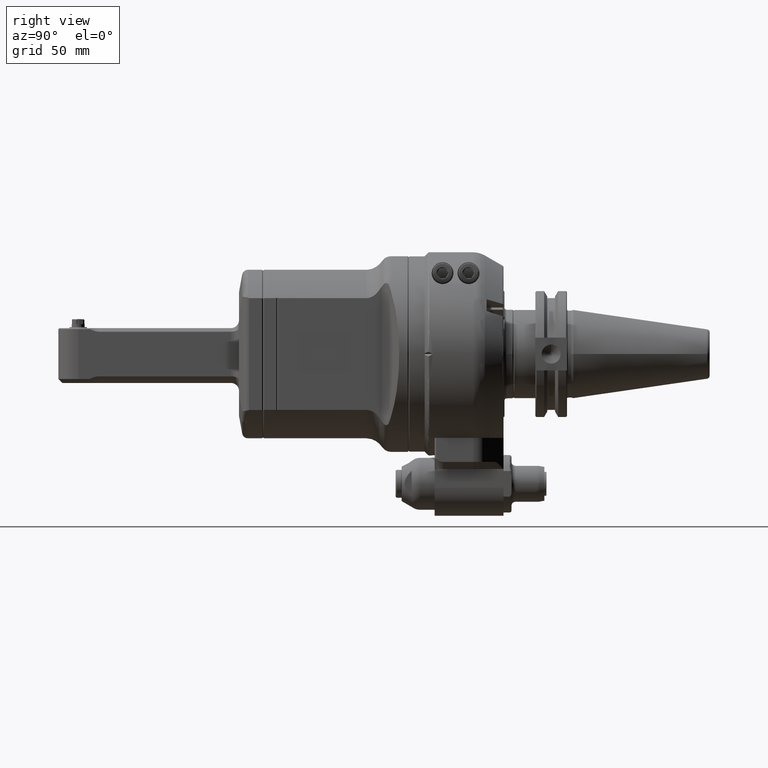
[diagram: clean part render]
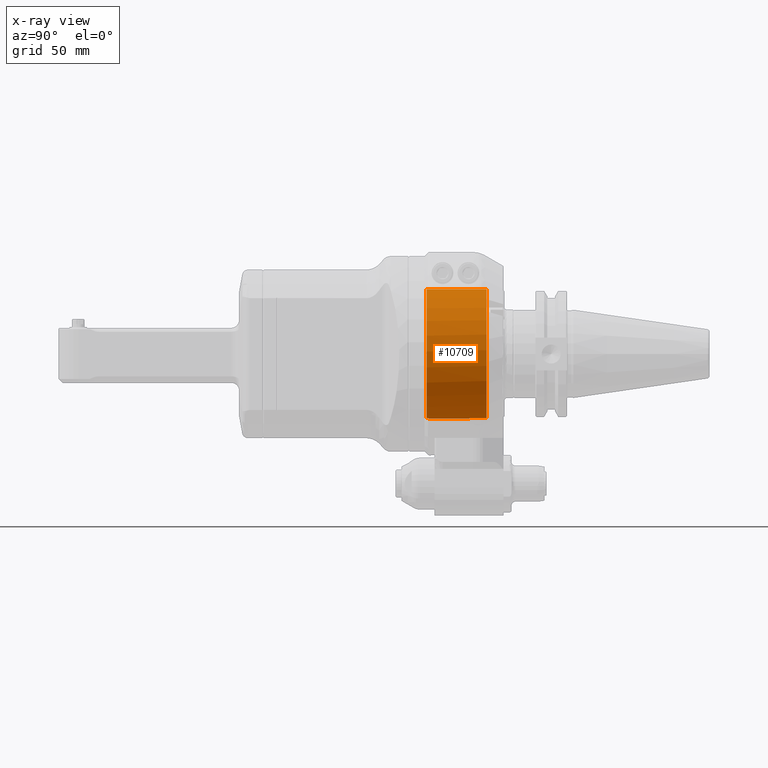
[diagram: x-ray — body ghosted, one internal face saturated and labeled with its STEP entity id]
A machine part, right view, then the same camera in x-ray: the body is ghosted and one INTERNAL B-rep face — a face not visible from any outside direction — is saturated and labeled: STEP entity #10709.
In plain terms, the highlighted cylindrical surface (partial cylindrical patch) has radius 32.5 mm, axis along (0, -1, 0).
Its self-contained STEP definition (entity closure, byte-faithful):
#945=LINE('',#19537,#1677);
#946=LINE('',#19540,#1678);
#947=LINE('',#19544,#1679);
#948=LINE('',#19548,#1680);
#1677=VECTOR('',#14128,0.334645669291339);
#1678=VECTOR('',#14131,0.334645669291339);
#1679=VECTOR('',#14134,1.18110236220472);
#1680=VECTOR('',#14137,1.18110236220394);
#2110=CYLINDRICAL_SURFACE('',#11807,1.27952755905512);
#2510=FACE_OUTER_BOUND('',#3193,.T.);
#3193=EDGE_LOOP('',(#8394,#8395,#8396,#8397,#8398,#8399,#8400,#8401));
#3861=CIRCLE('',#11758,1.27952755905512);
#3883=CIRCLE('',#11808,1.27952755905512);
#3884=CIRCLE('',#11809,1.27952755905512);
#3885=CIRCLE('',#11810,1.27952755905512);
#4679=VERTEX_POINT('',#18711);
#4680=VERTEX_POINT('',#18713);
#4718=VERTEX_POINT('',#19535);
#4719=VERTEX_POINT('',#19539);
#4720=VERTEX_POINT('',#19541);
#4721=VERTEX_POINT('',#19543);
#4722=VERTEX_POINT('',#19545);
#4723=VERTEX_POINT('',#19547);
#5963=EDGE_CURVE('',#4680,#4679,#3861,.T.);
#6033=EDGE_CURVE('',#4679,#4718,#945,.T.);
#6034=EDGE_CURVE('',#4680,#4719,#946,.T.);
#6035=EDGE_CURVE('',#4720,#4718,#3883,.T.);
#6036=EDGE_CURVE('',#4720,#4721,#947,.T.);
#6037=EDGE_CURVE('',#4722,#4721,#3884,.T.);
#6038=EDGE_CURVE('',#4722,#4723,#948,.T.);
#6039=EDGE_CURVE('',#4719,#4723,#3885,.T.);
#8394=ORIENTED_EDGE('',*,*,#6034,.F.);
#8395=ORIENTED_EDGE('',*,*,#5963,.T.);
#8396=ORIENTED_EDGE('',*,*,#6033,.T.);
#8397=ORIENTED_EDGE('',*,*,#6035,.F.);
#8398=ORIENTED_EDGE('',*,*,#6036,.T.);
#8399=ORIENTED_EDGE('',*,*,#6037,.F.);
#8400=ORIENTED_EDGE('',*,*,#6038,.T.);
#8401=ORIENTED_EDGE('',*,*,#6039,.F.);
#10709=ADVANCED_FACE('',(#2510),#2110,.F.);
#11758=AXIS2_PLACEMENT_3D('',#18714,#13997,#13998);
#11807=AXIS2_PLACEMENT_3D('',#19538,#14129,#14130);
#11808=AXIS2_PLACEMENT_3D('',#19542,#14132,#14133);
#11809=AXIS2_PLACEMENT_3D('',#19546,#14135,#14136);
#11810=AXIS2_PLACEMENT_3D('',#19549,#14138,#14139);
#13997=DIRECTION('center_axis',(0.,1.,0.));
#13998=DIRECTION('ref_axis',(0.164179104477598,0.,-0.986430545782588));
#14128=DIRECTION('',(0.,1.,0.));
#14129=DIRECTION('center_axis',(0.,-1.,0.));
#14130=DIRECTION('ref_axis',(1.38678298153134E-13,0.,-1.));
#14131=DIRECTION('',(0.,1.,0.));
#14132=DIRECTION('center_axis',(0.,-1.,0.));
#14133=DIRECTION('ref_axis',(-0.0461538461538519,0.,0.998934343430641));
#14134=DIRECTION('',(0.,-1.,0.));
#14135=DIRECTION('center_axis',(0.,1.,0.));
#14136=DIRECTION('ref_axis',(0.,0.,-1.));
#14137=DIRECTION('',(3.148370453234E-13,1.,-1.421085471521E-14));
#14138=DIRECTION('center_axis',(0.,-1.,0.));
#14139=DIRECTION('ref_axis',(0.164179104477598,0.,-0.986430545782588));
#18711=CARTESIAN_POINT('',(-0.210071688800079,0.885826771653543,-1.26216506842244));
#18713=CARTESIAN_POINT('',(0.210071688800079,0.885826771653543,-1.26216506842244));
#18714=CARTESIAN_POINT('Origin',(0.,0.885826771653543,0.));
#19535=CARTESIAN_POINT('',(-0.210071688800079,1.22047244094488,-1.26216506842244));
#19537=CARTESIAN_POINT('',(-0.210071688800079,0.885826771653543,-1.26216506842244));
#19538=CARTESIAN_POINT('Origin',(0.,0.649606299212598,0.));
#19539=CARTESIAN_POINT('',(0.210071688800079,1.22047244094488,-1.26216506842244));
#19540=CARTESIAN_POINT('',(0.210071688800079,0.885826771653543,-1.26216506842244));
#19541=CARTESIAN_POINT('',(-0.0590551181102362,1.22047244094488,1.2781640221063));
#19542=CARTESIAN_POINT('Origin',(0.,1.22047244094488,0.));
#19543=CARTESIAN_POINT('',(-0.0590551181102362,0.0393700787401575,1.2781640221063));
#19544=CARTESIAN_POINT('',(-0.0590551181102362,1.22047244094488,1.2781640221063));
#19545=CARTESIAN_POINT('',(0.0590551181098819,0.039370078741063,1.2781640221063));
#19546=CARTESIAN_POINT('Origin',(0.,0.0393700787401535,0.));
#19547=CARTESIAN_POINT('',(0.0590551181102362,1.22047244094488,1.2781640221063));
#19548=CARTESIAN_POINT('',(0.0590551181098819,0.039370078741063,1.2781640221063));
#19549=CARTESIAN_POINT('Origin',(0.,1.22047244094488,0.));